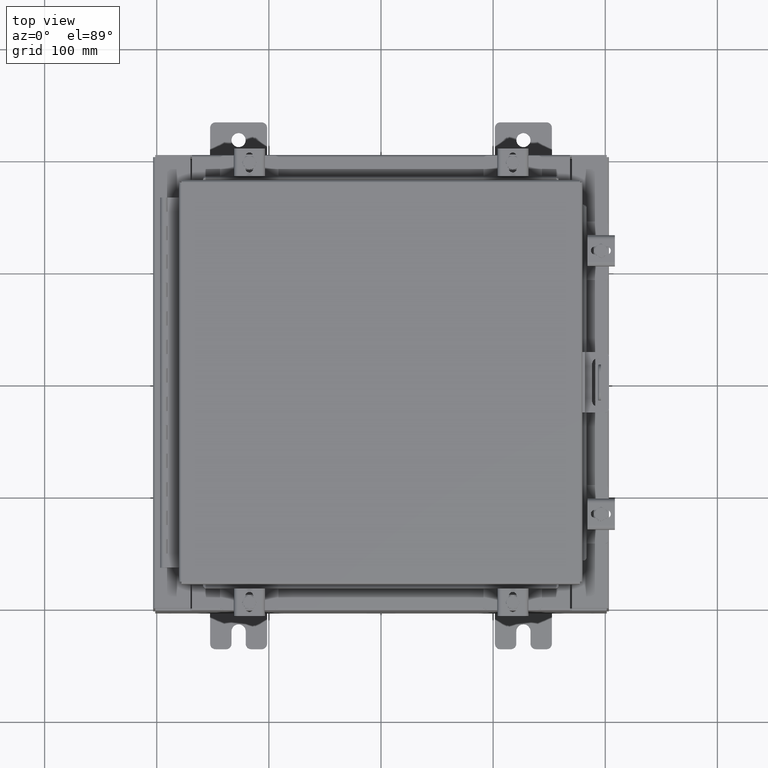
[diagram: clean part render]
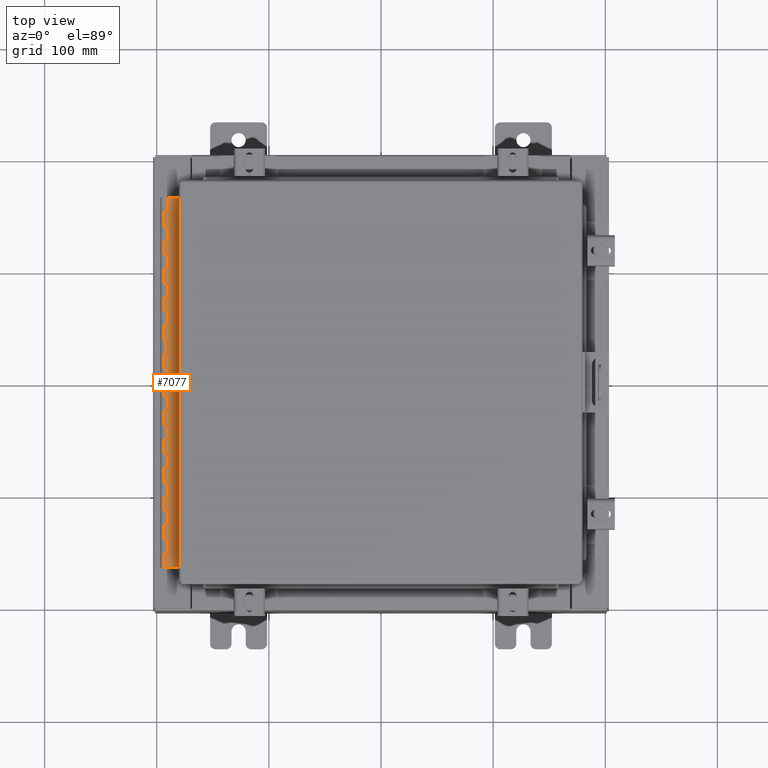
[diagram: same view with one face highlighted and labeled with its STEP entity id]
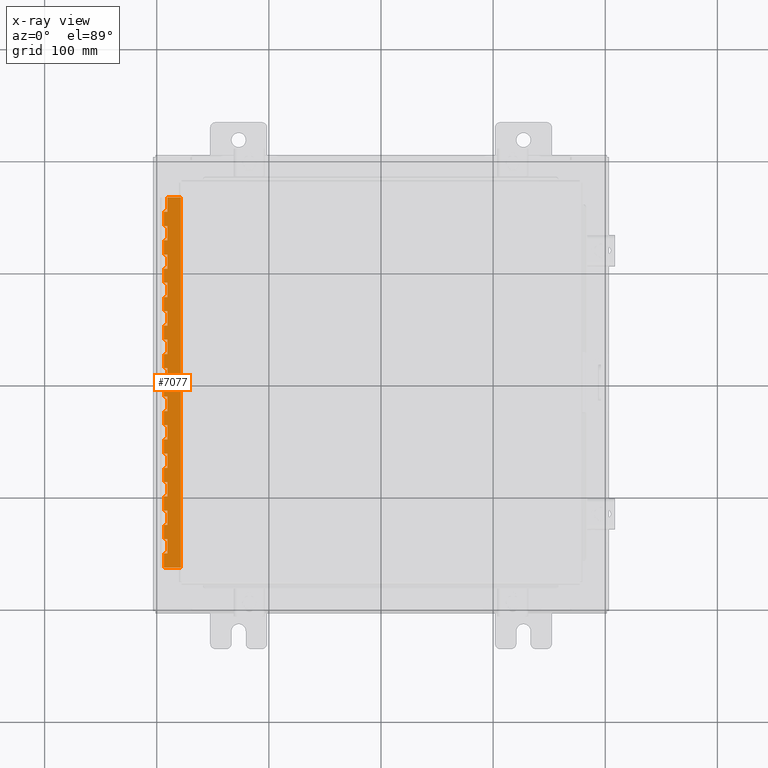
[diagram: x-ray of the same camera — body ghosted, the highlighted face saturated]
A machine part, top view. The second image highlights one B-rep face of the part: STEP entity #7077.
The next image is the same camera in x-ray: the body ghosted, the highlighted face saturated — about 0% of this face is hidden behind the body in this view.
In plain terms, the highlighted planar face has unit normal (-0, -0, 1).
Its self-contained STEP definition (entity closure, byte-faithful):
#88 = EDGE_CURVE ( 'NONE', #881, #17939, #12358, .T. ) ;
#188 = CARTESIAN_POINT ( 'NONE',  ( -0.6869999999999982800, 0.5504999999999997700, -9.500000000000000000 ) ) ;
#280 = DIRECTION ( 'NONE',  ( 0.0000000000000000000, -0.0000000000000000000, -1.000000000000000000 ) ) ;
#363 = CARTESIAN_POINT ( 'NONE',  ( -0.6869999999999982800, 0.5504999999999997700, -10.50000000000000000 ) ) ;
#408 = DIRECTION ( 'NONE',  ( -3.389037039080723100E-015, -1.000000000000000000, 0.0000000000000000000 ) ) ;
#529 = ORIENTED_EDGE ( 'NONE', *, *, #11319, .F. ) ;
#543 = CARTESIAN_POINT ( 'NONE',  ( -0.6869999999999982800, 0.5504999999999997700, -10.00000000000000000 ) ) ;
#582 = CARTESIAN_POINT ( 'NONE',  ( -0.6869999999999982800, 0.5504999999999997700, -1.499999999999999800 ) ) ;
#587 = VECTOR ( 'NONE', #22249, 39.37007874015748100 ) ;
#595 = DIRECTION ( 'NONE',  ( -3.389037039080723100E-015, -1.000000000000000000, 0.0000000000000000000 ) ) ;
#621 = CARTESIAN_POINT ( 'NONE',  ( -0.6869999999999978300, 0.6754999999999996600, -13.00000000000000000 ) ) ;
#644 = VECTOR ( 'NONE', #22413, 39.37007874015748100 ) ;
#703 = DIRECTION ( 'NONE',  ( 3.389037039080723100E-015, 1.000000000000000000, -0.0000000000000000000 ) ) ;
#782 = DIRECTION ( 'NONE',  ( 3.389037039080723100E-015, 1.000000000000000000, -0.0000000000000000000 ) ) ;
#851 = VECTOR ( 'NONE', #14543, 39.37007874015748100 ) ;
#871 = ORIENTED_EDGE ( 'NONE', *, *, #14761, .F. ) ;
#881 = VERTEX_POINT ( 'NONE', #17941 ) ;
#899 = CARTESIAN_POINT ( 'NONE',  ( -0.6869999999999973900, 0.8004999999999995500, -11.00000000000000000 ) ) ;
#1014 = DIRECTION ( 'NONE',  ( 0.0000000000000000000, 0.0000000000000000000, 1.000000000000000000 ) ) ;
#1139 = LINE ( 'NONE', #24567, #17152 ) ;
#1156 = LINE ( 'NONE', #20278, #21276 ) ;
#1172 = ORIENTED_EDGE ( 'NONE', *, *, #7482, .F. ) ;
#1234 = DIRECTION ( 'NONE',  ( 0.0000000000000000000, 0.0000000000000000000, 1.000000000000000000 ) ) ;
#1236 = LINE ( 'NONE', #20122, #587 ) ;
#1375 = ORIENTED_EDGE ( 'NONE', *, *, #6062, .F. ) ;
#1393 = VECTOR ( 'NONE', #6144, 39.37007874015748100 ) ;
#1422 = ORIENTED_EDGE ( 'NONE', *, *, #15826, .F. ) ;
#1586 = VERTEX_POINT ( 'NONE', #12558 ) ;
#1605 = VERTEX_POINT ( 'NONE', #22999 ) ;
#1673 = VECTOR ( 'NONE', #24564, 39.37007874015748100 ) ;
#1792 = DIRECTION ( 'NONE',  ( 3.389037039080723100E-015, 1.000000000000000000, -0.0000000000000000000 ) ) ;
#1833 = VERTEX_POINT ( 'NONE', #11587 ) ;
#1913 = EDGE_CURVE ( 'NONE', #23314, #25727, #15689, .T. ) ;
#1928 = CARTESIAN_POINT ( 'NONE',  ( -0.6869999999999982800, 0.5504999999999997700, -3.500000000000000000 ) ) ;
#1977 = VERTEX_POINT ( 'NONE', #9130 ) ;
#2052 = CARTESIAN_POINT ( 'NONE',  ( -0.6869999999999978300, 0.6754999999999996600, -7.000000000000000000 ) ) ;
#2056 = EDGE_CURVE ( 'NONE', #7059, #4881, #7890, .T. ) ;
#2092 = VERTEX_POINT ( 'NONE', #17105 ) ;
#2268 = CARTESIAN_POINT ( 'NONE',  ( -0.6869999999999978300, 0.6754999999999996600, -13.00000000000000000 ) ) ;
#2328 = EDGE_CURVE ( 'NONE', #20065, #12952, #11635, .T. ) ;
#2338 = CARTESIAN_POINT ( 'NONE',  ( -0.6869999999999978300, 0.6754999999999996600, -1.000000000000000000 ) ) ;
#2440 = CARTESIAN_POINT ( 'NONE',  ( -0.6869999999999973900, 0.8004999999999995500, -0.5000000000000000000 ) ) ;
#2458 = VECTOR ( 'NONE', #12018, 39.37007874015748100 ) ;
#2530 = VECTOR ( 'NONE', #21783, 39.37007874015748100 ) ;
#2575 = EDGE_CURVE ( 'NONE', #1977, #13095, #1236, .T. ) ;
#2689 = VERTEX_POINT ( 'NONE', #7006 ) ;
#2694 = CARTESIAN_POINT ( 'NONE',  ( -0.6869999999999973900, 0.8004999999999995500, -8.500000000000000000 ) ) ;
#2762 = EDGE_CURVE ( 'NONE', #1977, #7880, #18842, .T. ) ;
#2811 = ORIENTED_EDGE ( 'NONE', *, *, #2056, .T. ) ;
#2878 = DIRECTION ( 'NONE',  ( 0.0000000000000000000, -0.0000000000000000000, -1.000000000000000000 ) ) ;
#2887 = CARTESIAN_POINT ( 'NONE',  ( -0.6869999999999982800, 0.5504999999999997700, -1.000000000000000000 ) ) ;
#2892 = VECTOR ( 'NONE', #1792, 39.37007874015748100 ) ;
#2979 = VECTOR ( 'NONE', #1014, 39.37007874015748100 ) ;
#2998 = LINE ( 'NONE', #8619, #21855 ) ;
#3104 = LINE ( 'NONE', #2440, #14404 ) ;
#3108 = EDGE_CURVE ( 'NONE', #24055, #22988, #16592, .T. ) ;
#3314 = ORIENTED_EDGE ( 'NONE', *, *, #9897, .T. ) ;
#3369 = EDGE_CURVE ( 'NONE', #24427, #20065, #12844, .T. ) ;
#3432 = VECTOR ( 'NONE', #11794, 39.37007874015748100 ) ;
#3519 = EDGE_CURVE ( 'NONE', #16982, #24278, #8448, .T. ) ;
#3567 = CARTESIAN_POINT ( 'NONE',  ( -0.6869999999999978300, 0.6754999999999996600, -12.49999999999999800 ) ) ;
#3654 = LINE ( 'NONE', #14156, #24445 ) ;
#3666 = CARTESIAN_POINT ( 'NONE',  ( -0.6869999999999982800, 0.5504999999999997700, -6.499999999999999100 ) ) ;
#3667 = CARTESIAN_POINT ( 'NONE',  ( -0.6870000000000022800, -0.6245000000000003900, 0.0000000000000000000 ) ) ;
#3681 = VECTOR ( 'NONE', #4147, 39.37007874015748100 ) ;
#3728 = CARTESIAN_POINT ( 'NONE',  ( -0.6869999999999978300, 0.6754999999999996600, -9.000000000000000000 ) ) ;
#3764 = DIRECTION ( 'NONE',  ( 3.369016658928398200E-015, 1.000000000000000000, 0.0000000000000000000 ) ) ;
#3770 = LINE ( 'NONE', #9864, #9156 ) ;
#3793 = EDGE_CURVE ( 'NONE', #4752, #9660, #16883, .T. ) ;
#3812 = CARTESIAN_POINT ( 'NONE',  ( -0.6869999999999973900, 0.8004999999999995500, -5.000000000000000000 ) ) ;
#3888 = EDGE_CURVE ( 'NONE', #7059, #1586, #20341, .T. ) ;
#3935 = CARTESIAN_POINT ( 'NONE',  ( -0.6869999999999982800, 0.5504999999999997700, -7.499999999999999100 ) ) ;
#4034 = CARTESIAN_POINT ( 'NONE',  ( -0.6869999999999978300, 0.6754999999999996600, -11.00000000000000000 ) ) ;
#4092 = CARTESIAN_POINT ( 'NONE',  ( -0.6869999999999998300, 0.07549999999999991400, 0.0000000000000000000 ) ) ;
#4101 = LINE ( 'NONE', #18812, #8215 ) ;
#4102 = LINE ( 'NONE', #5393, #19524 ) ;
#4147 = DIRECTION ( 'NONE',  ( -3.389037039080723100E-015, -1.000000000000000000, 0.0000000000000000000 ) ) ;
#4200 = EDGE_CURVE ( 'NONE', #1605, #4940, #8088, .T. ) ;
#4364 = DIRECTION ( 'NONE',  ( 3.389037039080723100E-015, 1.000000000000000000, -0.0000000000000000000 ) ) ;
#4406 = EDGE_CURVE ( 'NONE', #16698, #16938, #3654, .T. ) ;
#4456 = DIRECTION ( 'NONE',  ( -3.389037039080723100E-015, -1.000000000000000000, 0.0000000000000000000 ) ) ;
#4457 = VERTEX_POINT ( 'NONE', #17417 ) ;
#4489 = DIRECTION ( 'NONE',  ( 0.0000000000000000000, 0.0000000000000000000, 1.000000000000000000 ) ) ;
#4543 = CARTESIAN_POINT ( 'NONE',  ( -0.6869999999999982800, 0.5504999999999997700, -7.499999999999999100 ) ) ;
#4717 = CARTESIAN_POINT ( 'NONE',  ( -0.6869999999999973900, 0.8004999999999995500, -10.00000000000000000 ) ) ;
#4752 = VERTEX_POINT ( 'NONE', #14574 ) ;
#4818 = DIRECTION ( 'NONE',  ( -3.389037039080723100E-015, -1.000000000000000000, 0.0000000000000000000 ) ) ;
#4881 = VERTEX_POINT ( 'NONE', #25718 ) ;
#4940 = VERTEX_POINT ( 'NONE', #4034 ) ;
#4961 = AXIS2_PLACEMENT_3D ( 'NONE', #13155, #17176, #5167 ) ;
#5018 = CARTESIAN_POINT ( 'NONE',  ( -0.6869999999999982800, 0.5504999999999997700, -8.000000000000000000 ) ) ;
#5022 = ORIENTED_EDGE ( 'NONE', *, *, #17094, .F. ) ;
#5045 = CARTESIAN_POINT ( 'NONE',  ( -0.6869999999999978300, 0.6754999999999996600, -5.000000000000000000 ) ) ;
#5059 = ORIENTED_EDGE ( 'NONE', *, *, #3369, .F. ) ;
#5077 = EDGE_CURVE ( 'NONE', #25938, #13760, #12158, .T. ) ;
#5108 = VECTOR ( 'NONE', #280, 39.37007874015748100 ) ;
#5129 = VECTOR ( 'NONE', #14119, 39.37007874015748100 ) ;
#5167 = DIRECTION ( 'NONE',  ( 3.369016658928398200E-015, 1.000000000000000000, 0.0000000000000000000 ) ) ;
#5168 = ORIENTED_EDGE ( 'NONE', *, *, #7374, .F. ) ;
#5189 = EDGE_CURVE ( 'NONE', #24427, #8180, #25719, .T. ) ;
#5225 = VERTEX_POINT ( 'NONE', #13686 ) ;
#5393 = CARTESIAN_POINT ( 'NONE',  ( -0.6870000000000022800, -0.6245000000000003900, -13.00000000000000000 ) ) ;
#5399 = CARTESIAN_POINT ( 'NONE',  ( -0.6869999999999982800, 0.5504999999999997700, -6.499999999999999100 ) ) ;
#5405 = ORIENTED_EDGE ( 'NONE', *, *, #11881, .F. ) ;
#5572 = EDGE_CURVE ( 'NONE', #14646, #16938, #22852, .T. ) ;
#5772 = LINE ( 'NONE', #10670, #7066 ) ;
#5859 = LINE ( 'NONE', #20550, #21254 ) ;
#5883 = DIRECTION ( 'NONE',  ( 0.0000000000000000000, -0.0000000000000000000, -1.000000000000000000 ) ) ;
#5961 = VERTEX_POINT ( 'NONE', #5018 ) ;
#6062 = EDGE_CURVE ( 'NONE', #25938, #24232, #22825, .T. ) ;
#6136 = ORIENTED_EDGE ( 'NONE', *, *, #25453, .F. ) ;
#6135 = VECTOR ( 'NONE', #8825, 39.37007874015748100 ) ;
#6144 = DIRECTION ( 'NONE',  ( 3.389037039080723100E-015, 1.000000000000000000, -0.0000000000000000000 ) ) ;
#6186 = CARTESIAN_POINT ( 'NONE',  ( -0.6869999999999978300, 0.6754999999999996600, -13.00000000000000000 ) ) ;
#6225 = EDGE_CURVE ( 'NONE', #24546, #19864, #24390, .T. ) ;
#6246 = LINE ( 'NONE', #9199, #16248 ) ;
#6288 = VECTOR ( 'NONE', #24203, 39.37007874015748100 ) ;
#6347 = VECTOR ( 'NONE', #20216, 39.37007874015748100 ) ;
#6354 = CARTESIAN_POINT ( 'NONE',  ( -0.6869999999999973900, 0.8004999999999995500, -11.99999999999999800 ) ) ;
#6414 = VERTEX_POINT ( 'NONE', #9903 ) ;
#6482 = CARTESIAN_POINT ( 'NONE',  ( -0.6869999999999982800, 0.5504999999999997700, -12.49999999999999800 ) ) ;
#6602 = DIRECTION ( 'NONE',  ( -3.389037039080723100E-015, -1.000000000000000000, 0.0000000000000000000 ) ) ;
#6659 = CARTESIAN_POINT ( 'NONE',  ( -0.6869999999999973900, 0.8004999999999995500, -6.499999999999999100 ) ) ;
#6773 = LINE ( 'NONE', #12209, #1393 ) ;
#6789 = CARTESIAN_POINT ( 'NONE',  ( -0.6869999999999973900, 0.8004999999999995500, -1.499999999999999800 ) ) ;
#6796 = CARTESIAN_POINT ( 'NONE',  ( -0.6869999999999973900, 0.8004999999999995500, -2.999999999999999600 ) ) ;
#6854 = CARTESIAN_POINT ( 'NONE',  ( -0.6869999999999978300, 0.6754999999999996600, -10.00000000000000000 ) ) ;
#6912 = VERTEX_POINT ( 'NONE', #24810 ) ;
#6982 = CARTESIAN_POINT ( 'NONE',  ( -0.6869999999999973900, 0.8004999999999995500, -2.500000000000000000 ) ) ;
#7006 = CARTESIAN_POINT ( 'NONE',  ( -0.6869999999999978300, 0.6754999999999996600, -4.500000000000000000 ) ) ;
#7059 = VERTEX_POINT ( 'NONE', #13065 ) ;
#7066 = VECTOR ( 'NONE', #595, 39.37007874015748100 ) ;
#7077 = ADVANCED_FACE ( 'NONE', ( #11447 ), #23211, .T. ) ;
#7171 = EDGE_CURVE ( 'NONE', #24278, #11607, #10835, .T. ) ;
#7248 = VECTOR ( 'NONE', #5883, 39.37007874015748100 ) ;
#7374 = EDGE_CURVE ( 'NONE', #5961, #4881, #23686, .T. ) ;
#7416 = DIRECTION ( 'NONE',  ( 3.369016658928398200E-015, 1.000000000000000000, 0.0000000000000000000 ) ) ;
#7421 = LINE ( 'NONE', #4543, #12112 ) ;
#7427 = DIRECTION ( 'NONE',  ( 0.0000000000000000000, -0.0000000000000000000, -1.000000000000000000 ) ) ;
#7443 = VECTOR ( 'NONE', #4364, 39.37007874015748100 ) ;
#7447 = ORIENTED_EDGE ( 'NONE', *, *, #2328, .F. ) ;
#7470 = VECTOR ( 'NONE', #20738, 39.37007874015748100 ) ;
#7482 = EDGE_CURVE ( 'NONE', #9660, #21303, #21130, .T. ) ;
#7501 = VERTEX_POINT ( 'NONE', #22456 ) ;
#7556 = ORIENTED_EDGE ( 'NONE', *, *, #4406, .T. ) ;
#7642 = VECTOR ( 'NONE', #16003, 39.37007874015748100 ) ;
#7677 = ORIENTED_EDGE ( 'NONE', *, *, #7171, .F. ) ;
#7772 = ORIENTED_EDGE ( 'NONE', *, *, #24058, .F. ) ;
#7781 = CARTESIAN_POINT ( 'NONE',  ( -0.6869999999999978300, 0.6754999999999996600, -6.499999999999999100 ) ) ;
#7823 = EDGE_CURVE ( 'NONE', #21484, #8180, #13550, .T. ) ;
#7840 = VERTEX_POINT ( 'NONE', #3728 ) ;
#7880 = VERTEX_POINT ( 'NONE', #2052 ) ;
#7890 = LINE ( 'NONE', #8067, #2530 ) ;
#7941 = EDGE_CURVE ( 'NONE', #23314, #7501, #17007, .T. ) ;
#8067 = CARTESIAN_POINT ( 'NONE',  ( -0.6869999999999978300, 0.6754999999999996600, -13.00000000000000000 ) ) ;
#8088 = LINE ( 'NONE', #25999, #23520 ) ;
#8105 = ORIENTED_EDGE ( 'NONE', *, *, #9067, .F. ) ;
#8180 = VERTEX_POINT ( 'NONE', #5045 ) ;
#8215 = VECTOR ( 'NONE', #20816, 39.37007874015748100 ) ;
#8271 = EDGE_CURVE ( 'NONE', #14400, #14557, #4102, .T. ) ;
#8367 = ORIENTED_EDGE ( 'NONE', *, *, #88, .F. ) ;
#8413 = ORIENTED_EDGE ( 'NONE', *, *, #11802, .T. ) ;
#8448 = LINE ( 'NONE', #1928, #2458 ) ;
#8619 = CARTESIAN_POINT ( 'NONE',  ( -0.6869999999999973900, 0.8004999999999995500, -3.500000000000000000 ) ) ;
#8698 = LINE ( 'NONE', #2268, #18721 ) ;
#8754 = VERTEX_POINT ( 'NONE', #20914 ) ;
#8815 = DIRECTION ( 'NONE',  ( 0.0000000000000000000, -0.0000000000000000000, -1.000000000000000000 ) ) ;
#8825 = DIRECTION ( 'NONE',  ( -3.389037039080723100E-015, -1.000000000000000000, 0.0000000000000000000 ) ) ;
#8873 = EDGE_CURVE ( 'NONE', #881, #4457, #12896, .T. ) ;
#8989 = LINE ( 'NONE', #11073, #2979 ) ;
#9027 = EDGE_CURVE ( 'NONE', #1586, #1833, #20424, .T. ) ;
#9067 = EDGE_CURVE ( 'NONE', #22876, #7880, #3770, .T. ) ;
#9088 = ORIENTED_EDGE ( 'NONE', *, *, #3519, .F. ) ;
#9130 = CARTESIAN_POINT ( 'NONE',  ( -0.6869999999999978300, 0.6754999999999996600, -7.499999999999999100 ) ) ;
#9146 = EDGE_CURVE ( 'NONE', #17939, #6414, #23294, .T. ) ;
#9156 = VECTOR ( 'NONE', #21865, 39.37007874015748100 ) ;
#9199 = CARTESIAN_POINT ( 'NONE',  ( -0.6869999999999978300, 0.6754999999999996600, -13.00000000000000000 ) ) ;
#9337 = EDGE_CURVE ( 'NONE', #2689, #2092, #24864, .T. ) ;
#9351 = CARTESIAN_POINT ( 'NONE',  ( -0.6869999999999998300, 0.07549999999999991400, -13.00000000000000000 ) ) ;
#9358 = ORIENTED_EDGE ( 'NONE', *, *, #17834, .F. ) ;
#9455 = ORIENTED_EDGE ( 'NONE', *, *, #17300, .F. ) ;
#9660 = VERTEX_POINT ( 'NONE', #17693 ) ;
#9864 = CARTESIAN_POINT ( 'NONE',  ( -0.6869999999999973900, 0.8004999999999995500, -7.000000000000000000 ) ) ;
#9897 = EDGE_CURVE ( 'NONE', #4752, #7840, #6246, .T. ) ;
#9903 = CARTESIAN_POINT ( 'NONE',  ( -0.6869999999999982800, 0.5504999999999997700, -2.999999999999999600 ) ) ;
#10157 = DIRECTION ( 'NONE',  ( 0.0000000000000000000, 0.0000000000000000000, 1.000000000000000000 ) ) ;
#10406 = VECTOR ( 'NONE', #25987, 39.37007874015748100 ) ;
#10451 = CARTESIAN_POINT ( 'NONE',  ( -0.6869999999999973900, 0.8004999999999995500, -1.000000000000000000 ) ) ;
#10472 = VERTEX_POINT ( 'NONE', #25430 ) ;
#10648 = DIRECTION ( 'NONE',  ( -3.389037039080723100E-015, -1.000000000000000000, 0.0000000000000000000 ) ) ;
#10661 = ORIENTED_EDGE ( 'NONE', *, *, #11212, .F. ) ;
#10670 = CARTESIAN_POINT ( 'NONE',  ( -0.6869999999999973900, 0.8004999999999995500, -12.49999999999999800 ) ) ;
#10776 = CARTESIAN_POINT ( 'NONE',  ( -0.6869999999999973900, 0.8004999999999995500, -9.000000000000000000 ) ) ;
#10805 = VECTOR ( 'NONE', #8815, 39.37007874015748100 ) ;
#10835 = LINE ( 'NONE', #13401, #14862 ) ;
#10917 = ORIENTED_EDGE ( 'NONE', *, *, #24274, .F. ) ;
#10937 = CARTESIAN_POINT ( 'NONE',  ( -0.6869999999999982800, 0.5504999999999997700, -5.500000000000000000 ) ) ;
#10981 = VECTOR ( 'NONE', #4818, 39.37007874015748100 ) ;
#11073 = CARTESIAN_POINT ( 'NONE',  ( -0.6869999999999978300, 0.6754999999999996600, -13.00000000000000000 ) ) ;
#11190 = ORIENTED_EDGE ( 'NONE', *, *, #9146, .F. ) ;
#11195 = DIRECTION ( 'NONE',  ( 0.0000000000000000000, 0.0000000000000000000, 1.000000000000000000 ) ) ;
#11204 = EDGE_CURVE ( 'NONE', #1605, #13599, #1139, .T. ) ;
#11212 = EDGE_CURVE ( 'NONE', #14400, #14646, #5859, .T. ) ;
#11319 = EDGE_CURVE ( 'NONE', #6414, #6912, #24762, .T. ) ;
#11447 = FACE_OUTER_BOUND ( 'NONE', #11850, .T. ) ;
#11587 = CARTESIAN_POINT ( 'NONE',  ( -0.6869999999999982800, 0.5504999999999997700, -9.000000000000000000 ) ) ;
#11607 = VERTEX_POINT ( 'NONE', #13672 ) ;
#11635 = LINE ( 'NONE', #21983, #6288 ) ;
#11728 = ORIENTED_EDGE ( 'NONE', *, *, #6225, .T. ) ;
#11794 = DIRECTION ( 'NONE',  ( 0.0000000000000000000, 0.0000000000000000000, 1.000000000000000000 ) ) ;
#11802 = EDGE_CURVE ( 'NONE', #2689, #11607, #8698, .T. ) ;
#11850 = EDGE_LOOP ( 'NONE', ( #10661, #17806, #5022, #9358, #11728, #13632, #6136, #19711, #25348, #9455, #10917, #19260, #13389, #15428, #1172, #19786, #3314, #21885, #17817, #14312, #2811, #5168, #5405, #12438, #19309, #8105, #22360, #24522, #14757, #25675, #7447, #5059, #15851, #19769, #7772, #17267, #8413, #7677, #9088, #13224, #18042, #529, #11190, #8367, #14430, #1422, #15941, #1375, #11971, #24774, #13433, #871, #7556, #23756 ) ) ;
#11881 = EDGE_CURVE ( 'NONE', #13095, #5961, #7421, .T. ) ;
#11971 = ORIENTED_EDGE ( 'NONE', *, *, #5077, .T. ) ;
#11988 = LINE ( 'NONE', #13511, #16686 ) ;
#11989 = EDGE_CURVE ( 'NONE', #24232, #8754, #20261, .T. ) ;
#12018 = DIRECTION ( 'NONE',  ( 0.0000000000000000000, -0.0000000000000000000, -1.000000000000000000 ) ) ;
#12037 = EDGE_CURVE ( 'NONE', #10472, #6912, #8989, .T. ) ;
#12112 = VECTOR ( 'NONE', #20616, 39.37007874015748100 ) ;
#12158 = LINE ( 'NONE', #22810, #7470 ) ;
#12209 = CARTESIAN_POINT ( 'NONE',  ( -0.6869999999999973900, 0.8004999999999995500, -6.000000000000000900 ) ) ;
#12334 = CARTESIAN_POINT ( 'NONE',  ( -0.6869999999999982800, 0.5504999999999997700, -12.49999999999999800 ) ) ;
#12358 = LINE ( 'NONE', #6982, #1673 ) ;
#12438 = ORIENTED_EDGE ( 'NONE', *, *, #2575, .F. ) ;
#12558 = CARTESIAN_POINT ( 'NONE',  ( -0.6869999999999982800, 0.5504999999999997700, -8.500000000000000000 ) ) ;
#12645 = VECTOR ( 'NONE', #18671, 39.37007874015748100 ) ;
#12844 = LINE ( 'NONE', #14631, #10981 ) ;
#12896 = LINE ( 'NONE', #21347, #18238 ) ;
#12952 = VERTEX_POINT ( 'NONE', #13517 ) ;
#12995 = CARTESIAN_POINT ( 'NONE',  ( -0.6869999999999982800, 0.5504999999999997700, -2.500000000000000000 ) ) ;
#13065 = CARTESIAN_POINT ( 'NONE',  ( -0.6869999999999978300, 0.6754999999999996600, -8.500000000000000000 ) ) ;
#13095 = VERTEX_POINT ( 'NONE', #3935 ) ;
#13155 = CARTESIAN_POINT ( 'NONE',  ( -0.6870000000000022800, -0.6245000000000003900, -13.00000000000000000 ) ) ;
#13176 = EDGE_CURVE ( 'NONE', #12952, #7501, #6773, .T. ) ;
#13224 = ORIENTED_EDGE ( 'NONE', *, *, #22392, .F. ) ;
#13389 = ORIENTED_EDGE ( 'NONE', *, *, #17454, .T. ) ;
#13401 = CARTESIAN_POINT ( 'NONE',  ( -0.6869999999999973900, 0.8004999999999995500, -4.000000000000000000 ) ) ;
#13433 = ORIENTED_EDGE ( 'NONE', *, *, #20238, .F. ) ;
#13511 = CARTESIAN_POINT ( 'NONE',  ( -0.6869999999999982800, 0.5504999999999997700, -0.5000000000000000000 ) ) ;
#13517 = CARTESIAN_POINT ( 'NONE',  ( -0.6869999999999982800, 0.5504999999999997700, -6.000000000000000900 ) ) ;
#13550 = LINE ( 'NONE', #3812, #2892 ) ;
#13599 = VERTEX_POINT ( 'NONE', #17435 ) ;
#13632 = ORIENTED_EDGE ( 'NONE', *, *, #19537, .F. ) ;
#13672 = CARTESIAN_POINT ( 'NONE',  ( -0.6869999999999978300, 0.6754999999999996600, -4.000000000000000000 ) ) ;
#13678 = CARTESIAN_POINT ( 'NONE',  ( -0.6869999999999982800, 0.5504999999999997700, -8.500000000000000000 ) ) ;
#13686 = CARTESIAN_POINT ( 'NONE',  ( -0.6869999999999982800, 0.5504999999999997700, -11.99999999999999800 ) ) ;
#13760 = VERTEX_POINT ( 'NONE', #2338 ) ;
#13800 = CARTESIAN_POINT ( 'NONE',  ( -0.6869999999999978300, 0.6754999999999996600, -13.00000000000000000 ) ) ;
#13882 = LINE ( 'NONE', #4717, #12645 ) ;
#13900 = CARTESIAN_POINT ( 'NONE',  ( -0.6869999999999978300, 0.6754999999999996600, 0.0000000000000000000 ) ) ;
#13934 = VERTEX_POINT ( 'NONE', #25311 ) ;
#13947 = VECTOR ( 'NONE', #7427, 39.37007874015748100 ) ;
#14001 = CARTESIAN_POINT ( 'NONE',  ( -0.6869999999999973900, 0.8004999999999995500, -8.000000000000000000 ) ) ;
#14119 = DIRECTION ( 'NONE',  ( 0.0000000000000000000, -0.0000000000000000000, -1.000000000000000000 ) ) ;
#14156 = CARTESIAN_POINT ( 'NONE',  ( -0.6869999999999978300, 0.6754999999999996600, -13.00000000000000000 ) ) ;
#14312 = ORIENTED_EDGE ( 'NONE', *, *, #3888, .F. ) ;
#14400 = VERTEX_POINT ( 'NONE', #9351 ) ;
#14404 = VECTOR ( 'NONE', #4456, 39.37007874015748100 ) ;
#14430 = ORIENTED_EDGE ( 'NONE', *, *, #8873, .T. ) ;
#14436 = VECTOR ( 'NONE', #23837, 39.37007874015748100 ) ;
#14450 = DIRECTION ( 'NONE',  ( 0.0000000000000000000, 0.0000000000000000000, 1.000000000000000000 ) ) ;
#14543 = DIRECTION ( 'NONE',  ( -3.389037039080723100E-015, -1.000000000000000000, 0.0000000000000000000 ) ) ;
#14556 = VECTOR ( 'NONE', #703, 39.37007874015748100 ) ;
#14557 = VERTEX_POINT ( 'NONE', #15837 ) ;
#14574 = CARTESIAN_POINT ( 'NONE',  ( -0.6869999999999978300, 0.6754999999999996600, -9.500000000000000000 ) ) ;
#14631 = CARTESIAN_POINT ( 'NONE',  ( -0.6869999999999973900, 0.8004999999999995500, -5.500000000000000000 ) ) ;
#14646 = VERTEX_POINT ( 'NONE', #4092 ) ;
#14757 = ORIENTED_EDGE ( 'NONE', *, *, #7941, .T. ) ;
#14761 = EDGE_CURVE ( 'NONE', #16698, #17451, #3104, .T. ) ;
#14862 = VECTOR ( 'NONE', #23471, 39.37007874015748100 ) ;
#14912 = VECTOR ( 'NONE', #2878, 39.37007874015748100 ) ;
#15378 = CARTESIAN_POINT ( 'NONE',  ( -0.6869999999999982800, 0.5504999999999997700, -0.5000000000000000000 ) ) ;
#15428 = ORIENTED_EDGE ( 'NONE', *, *, #18984, .F. ) ;
#15689 = LINE ( 'NONE', #6659, #10406 ) ;
#15761 = LINE ( 'NONE', #22133, #5129 ) ;
#15826 = EDGE_CURVE ( 'NONE', #8754, #4457, #1156, .T. ) ;
#15837 = CARTESIAN_POINT ( 'NONE',  ( -0.6869999999999982800, 0.5504999999999997700, -13.00000000000000000 ) ) ;
#15851 = ORIENTED_EDGE ( 'NONE', *, *, #5189, .T. ) ;
#15930 = CARTESIAN_POINT ( 'NONE',  ( -0.6869999999999973900, 0.8004999999999995500, -9.500000000000000000 ) ) ;
#15941 = ORIENTED_EDGE ( 'NONE', *, *, #11989, .F. ) ;
#16003 = DIRECTION ( 'NONE',  ( 3.389037039080723100E-015, 1.000000000000000000, -0.0000000000000000000 ) ) ;
#16091 = CARTESIAN_POINT ( 'NONE',  ( -0.6869999999999982800, 0.5504999999999997700, -7.000000000000000000 ) ) ;
#16143 = VECTOR ( 'NONE', #24407, 39.37007874015748100 ) ;
#16226 = CARTESIAN_POINT ( 'NONE',  ( -0.6869999999999978300, 0.6754999999999996600, -11.99999999999999800 ) ) ;
#16248 = VECTOR ( 'NONE', #11195, 39.37007874015748100 ) ;
#16451 = VECTOR ( 'NONE', #18996, 39.37007874015748100 ) ;
#16467 = EDGE_CURVE ( 'NONE', #18476, #13760, #24105, .T. ) ;
#16585 = VERTEX_POINT ( 'NONE', #6854 ) ;
#16592 = LINE ( 'NONE', #22073, #21323 ) ;
#16600 = DIRECTION ( 'NONE',  ( 0.0000000000000000000, 0.0000000000000000000, 1.000000000000000000 ) ) ;
#16682 = LINE ( 'NONE', #6354, #644 ) ;
#16686 = VECTOR ( 'NONE', #19587, 39.37007874015748100 ) ;
#16698 = VERTEX_POINT ( 'NONE', #23197 ) ;
#16725 = LINE ( 'NONE', #22688, #10805 ) ;
#16883 = LINE ( 'NONE', #15930, #851 ) ;
#16938 = VERTEX_POINT ( 'NONE', #13900 ) ;
#16982 = VERTEX_POINT ( 'NONE', #22008 ) ;
#17007 = LINE ( 'NONE', #6186, #6347 ) ;
#17094 = EDGE_CURVE ( 'NONE', #25977, #14557, #21526, .T. ) ;
#17095 = LINE ( 'NONE', #899, #16451 ) ;
#17105 = CARTESIAN_POINT ( 'NONE',  ( -0.6869999999999982800, 0.5504999999999997700, -4.500000000000000000 ) ) ;
#17152 = VECTOR ( 'NONE', #408, 39.37007874015748100 ) ;
#17176 = DIRECTION ( 'NONE',  ( 1.000000000000000000, -3.369016658928398200E-015, 0.0000000000000000000 ) ) ;
#17267 = ORIENTED_EDGE ( 'NONE', *, *, #9337, .F. ) ;
#17300 = EDGE_CURVE ( 'NONE', #13934, #4940, #17095, .T. ) ;
#17417 = CARTESIAN_POINT ( 'NONE',  ( -0.6869999999999978300, 0.6754999999999996600, -2.000000000000000000 ) ) ;
#17435 = CARTESIAN_POINT ( 'NONE',  ( -0.6869999999999982800, 0.5504999999999997700, -11.50000000000000000 ) ) ;
#17440 = EDGE_CURVE ( 'NONE', #25727, #22876, #18691, .T. ) ;
#17451 = VERTEX_POINT ( 'NONE', #15378 ) ;
#17454 = EDGE_CURVE ( 'NONE', #24055, #16585, #24701, .T. ) ;
#17693 = CARTESIAN_POINT ( 'NONE',  ( -0.6869999999999982800, 0.5504999999999997700, -9.500000000000000000 ) ) ;
#17806 = ORIENTED_EDGE ( 'NONE', *, *, #8271, .T. ) ;
#17817 = ORIENTED_EDGE ( 'NONE', *, *, #9027, .F. ) ;
#17834 = EDGE_CURVE ( 'NONE', #24546, #25977, #5772, .T. ) ;
#17939 = VERTEX_POINT ( 'NONE', #12995 ) ;
#17941 = CARTESIAN_POINT ( 'NONE',  ( -0.6869999999999978300, 0.6754999999999996600, -2.500000000000000000 ) ) ;
#18042 = ORIENTED_EDGE ( 'NONE', *, *, #12037, .T. ) ;
#18238 = VECTOR ( 'NONE', #1234, 39.37007874015748100 ) ;
#18276 = DIRECTION ( 'NONE',  ( 3.389037039080723100E-015, 1.000000000000000000, -0.0000000000000000000 ) ) ;
#18476 = VERTEX_POINT ( 'NONE', #2887 ) ;
#18671 = DIRECTION ( 'NONE',  ( 3.389037039080723100E-015, 1.000000000000000000, -0.0000000000000000000 ) ) ;
#18691 = LINE ( 'NONE', #5399, #13947 ) ;
#18721 = VECTOR ( 'NONE', #14450, 39.37007874015748100 ) ;
#18812 = CARTESIAN_POINT ( 'NONE',  ( -0.6869999999999982800, 0.5504999999999997700, -11.50000000000000000 ) ) ;
#18842 = LINE ( 'NONE', #13800, #3432 ) ;
#18848 = VECTOR ( 'NONE', #10648, 39.37007874015748100 ) ;
#18984 = EDGE_CURVE ( 'NONE', #21303, #16585, #13882, .T. ) ;
#18996 = DIRECTION ( 'NONE',  ( 3.389037039080723100E-015, 1.000000000000000000, -0.0000000000000000000 ) ) ;
#19183 = CARTESIAN_POINT ( 'NONE',  ( -0.6869999999999982800, 0.5504999999999997700, -5.000000000000000000 ) ) ;
#19184 = DIRECTION ( 'NONE',  ( -3.389037039080723100E-015, -1.000000000000000000, 0.0000000000000000000 ) ) ;
#19260 = ORIENTED_EDGE ( 'NONE', *, *, #3108, .F. ) ;
#19309 = ORIENTED_EDGE ( 'NONE', *, *, #2762, .T. ) ;
#19371 = VECTOR ( 'NONE', #782, 39.37007874015748100 ) ;
#19374 = DIRECTION ( 'NONE',  ( 0.0000000000000000000, 0.0000000000000000000, 1.000000000000000000 ) ) ;
#19524 = VECTOR ( 'NONE', #7416, 39.37007874015748100 ) ;
#19537 = EDGE_CURVE ( 'NONE', #5225, #19864, #16682, .T. ) ;
#19587 = DIRECTION ( 'NONE',  ( 0.0000000000000000000, -0.0000000000000000000, -1.000000000000000000 ) ) ;
#19711 = ORIENTED_EDGE ( 'NONE', *, *, #11204, .F. ) ;
#19769 = ORIENTED_EDGE ( 'NONE', *, *, #7823, .F. ) ;
#19786 = ORIENTED_EDGE ( 'NONE', *, *, #3793, .F. ) ;
#19864 = VERTEX_POINT ( 'NONE', #16226 ) ;
#19915 = LINE ( 'NONE', #10776, #14556 ) ;
#20020 = CARTESIAN_POINT ( 'NONE',  ( -0.6869999999999982800, 0.5504999999999997700, -2.500000000000000000 ) ) ;
#20065 = VERTEX_POINT ( 'NONE', #10937 ) ;
#20122 = CARTESIAN_POINT ( 'NONE',  ( -0.6869999999999973900, 0.8004999999999995500, -7.499999999999999100 ) ) ;
#20216 = DIRECTION ( 'NONE',  ( 0.0000000000000000000, 0.0000000000000000000, 1.000000000000000000 ) ) ;
#20238 = EDGE_CURVE ( 'NONE', #17451, #18476, #11988, .T. ) ;
#20261 = LINE ( 'NONE', #24965, #14912 ) ;
#20278 = CARTESIAN_POINT ( 'NONE',  ( -0.6869999999999973900, 0.8004999999999995500, -2.000000000000000000 ) ) ;
#20341 = LINE ( 'NONE', #2694, #3681 ) ;
#20424 = LINE ( 'NONE', #13678, #14436 ) ;
#20550 = CARTESIAN_POINT ( 'NONE',  ( -0.6869999999999998300, 0.07549999999999991400, -13.00000000000000000 ) ) ;
#20616 = DIRECTION ( 'NONE',  ( 0.0000000000000000000, -0.0000000000000000000, -1.000000000000000000 ) ) ;
#20738 = DIRECTION ( 'NONE',  ( 0.0000000000000000000, 0.0000000000000000000, 1.000000000000000000 ) ) ;
#20811 = CARTESIAN_POINT ( 'NONE',  ( -0.6869999999999982800, 0.5504999999999997700, -4.000000000000000000 ) ) ;
#20816 = DIRECTION ( 'NONE',  ( 0.0000000000000000000, -0.0000000000000000000, -1.000000000000000000 ) ) ;
#20914 = CARTESIAN_POINT ( 'NONE',  ( -0.6869999999999982800, 0.5504999999999997700, -2.000000000000000000 ) ) ;
#21130 = LINE ( 'NONE', #188, #5108 ) ;
#21254 = VECTOR ( 'NONE', #4489, 39.37007874015748100 ) ;
#21276 = VECTOR ( 'NONE', #18276, 39.37007874015748100 ) ;
#21303 = VERTEX_POINT ( 'NONE', #543 ) ;
#21323 = VECTOR ( 'NONE', #19184, 39.37007874015748100 ) ;
#21347 = CARTESIAN_POINT ( 'NONE',  ( -0.6869999999999978300, 0.6754999999999996600, -13.00000000000000000 ) ) ;
#21457 = DIRECTION ( 'NONE',  ( 0.0000000000000000000, 0.0000000000000000000, 1.000000000000000000 ) ) ;
#21484 = VERTEX_POINT ( 'NONE', #19183 ) ;
#21526 = LINE ( 'NONE', #12334, #16143 ) ;
#21783 = DIRECTION ( 'NONE',  ( 0.0000000000000000000, 0.0000000000000000000, 1.000000000000000000 ) ) ;
#21855 = VECTOR ( 'NONE', #6602, 39.37007874015748100 ) ;
#21865 = DIRECTION ( 'NONE',  ( 3.389037039080723100E-015, 1.000000000000000000, -0.0000000000000000000 ) ) ;
#21885 = ORIENTED_EDGE ( 'NONE', *, *, #23618, .F. ) ;
#21983 = CARTESIAN_POINT ( 'NONE',  ( -0.6869999999999982800, 0.5504999999999997700, -5.500000000000000000 ) ) ;
#22008 = CARTESIAN_POINT ( 'NONE',  ( -0.6869999999999982800, 0.5504999999999997700, -3.500000000000000000 ) ) ;
#22073 = CARTESIAN_POINT ( 'NONE',  ( -0.6869999999999973900, 0.8004999999999995500, -10.50000000000000000 ) ) ;
#22133 = CARTESIAN_POINT ( 'NONE',  ( -0.6869999999999982800, 0.5504999999999997700, -4.500000000000000000 ) ) ;
#22196 = VECTOR ( 'NONE', #3764, 39.37007874015748100 ) ;
#22249 = DIRECTION ( 'NONE',  ( -3.389037039080723100E-015, -1.000000000000000000, 0.0000000000000000000 ) ) ;
#22360 = ORIENTED_EDGE ( 'NONE', *, *, #17440, .F. ) ;
#22392 = EDGE_CURVE ( 'NONE', #10472, #16982, #2998, .T. ) ;
#22413 = DIRECTION ( 'NONE',  ( 3.389037039080723100E-015, 1.000000000000000000, -0.0000000000000000000 ) ) ;
#22456 = CARTESIAN_POINT ( 'NONE',  ( -0.6869999999999978300, 0.6754999999999996600, -6.000000000000000900 ) ) ;
#22688 = CARTESIAN_POINT ( 'NONE',  ( -0.6869999999999982800, 0.5504999999999997700, -10.50000000000000000 ) ) ;
#22810 = CARTESIAN_POINT ( 'NONE',  ( -0.6869999999999978300, 0.6754999999999996600, -13.00000000000000000 ) ) ;
#22825 = LINE ( 'NONE', #6789, #6135 ) ;
#22852 = LINE ( 'NONE', #3667, #22196 ) ;
#22876 = VERTEX_POINT ( 'NONE', #16091 ) ;
#22988 = VERTEX_POINT ( 'NONE', #363 ) ;
#22999 = CARTESIAN_POINT ( 'NONE',  ( -0.6869999999999978300, 0.6754999999999996600, -11.50000000000000000 ) ) ;
#23072 = DIRECTION ( 'NONE',  ( 0.0000000000000000000, 0.0000000000000000000, 1.000000000000000000 ) ) ;
#23197 = CARTESIAN_POINT ( 'NONE',  ( -0.6869999999999978300, 0.6754999999999996600, -0.5000000000000000000 ) ) ;
#23211 = PLANE ( 'NONE',  #4961 ) ;
#23294 = LINE ( 'NONE', #20020, #7248 ) ;
#23301 = CARTESIAN_POINT ( 'NONE',  ( -0.6869999999999978300, 0.6754999999999996600, -5.500000000000000000 ) ) ;
#23314 = VERTEX_POINT ( 'NONE', #7781 ) ;
#23436 = VECTOR ( 'NONE', #21457, 39.37007874015748100 ) ;
#23471 = DIRECTION ( 'NONE',  ( 3.389037039080723100E-015, 1.000000000000000000, -0.0000000000000000000 ) ) ;
#23520 = VECTOR ( 'NONE', #10157, 39.37007874015748100 ) ;
#23618 = EDGE_CURVE ( 'NONE', #1833, #7840, #19915, .T. ) ;
#23686 = LINE ( 'NONE', #14001, #7642 ) ;
#23756 = ORIENTED_EDGE ( 'NONE', *, *, #5572, .F. ) ;
#23837 = DIRECTION ( 'NONE',  ( 0.0000000000000000000, -0.0000000000000000000, -1.000000000000000000 ) ) ;
#24055 = VERTEX_POINT ( 'NONE', #26146 ) ;
#24058 = EDGE_CURVE ( 'NONE', #2092, #21484, #15761, .T. ) ;
#24105 = LINE ( 'NONE', #10451, #7443 ) ;
#24203 = DIRECTION ( 'NONE',  ( 0.0000000000000000000, -0.0000000000000000000, -1.000000000000000000 ) ) ;
#24232 = VERTEX_POINT ( 'NONE', #582 ) ;
#24274 = EDGE_CURVE ( 'NONE', #22988, #13934, #16725, .T. ) ;
#24278 = VERTEX_POINT ( 'NONE', #20811 ) ;
#24390 = LINE ( 'NONE', #24822, #25039 ) ;
#24407 = DIRECTION ( 'NONE',  ( 0.0000000000000000000, -0.0000000000000000000, -1.000000000000000000 ) ) ;
#24427 = VERTEX_POINT ( 'NONE', #23301 ) ;
#24445 = VECTOR ( 'NONE', #19374, 39.37007874015748100 ) ;
#24522 = ORIENTED_EDGE ( 'NONE', *, *, #1913, .F. ) ;
#24533 = CARTESIAN_POINT ( 'NONE',  ( -0.6869999999999978300, 0.6754999999999996600, -1.499999999999999800 ) ) ;
#24546 = VERTEX_POINT ( 'NONE', #3567 ) ;
#24564 = DIRECTION ( 'NONE',  ( -3.389037039080723100E-015, -1.000000000000000000, 0.0000000000000000000 ) ) ;
#24567 = CARTESIAN_POINT ( 'NONE',  ( -0.6869999999999973900, 0.8004999999999995500, -11.50000000000000000 ) ) ;
#24701 = LINE ( 'NONE', #25556, #23436 ) ;
#24711 = CARTESIAN_POINT ( 'NONE',  ( -0.6869999999999973900, 0.8004999999999995500, -4.500000000000000000 ) ) ;
#24762 = LINE ( 'NONE', #6796, #19371 ) ;
#24774 = ORIENTED_EDGE ( 'NONE', *, *, #16467, .F. ) ;
#24810 = CARTESIAN_POINT ( 'NONE',  ( -0.6869999999999978300, 0.6754999999999996600, -2.999999999999999600 ) ) ;
#24822 = CARTESIAN_POINT ( 'NONE',  ( -0.6869999999999978300, 0.6754999999999996600, -13.00000000000000000 ) ) ;
#24864 = LINE ( 'NONE', #24711, #18848 ) ;
#24965 = CARTESIAN_POINT ( 'NONE',  ( -0.6869999999999982800, 0.5504999999999997700, -1.499999999999999800 ) ) ;
#25039 = VECTOR ( 'NONE', #23072, 39.37007874015748100 ) ;
#25095 = VECTOR ( 'NONE', #16600, 39.37007874015748100 ) ;
#25311 = CARTESIAN_POINT ( 'NONE',  ( -0.6869999999999982800, 0.5504999999999997700, -11.00000000000000000 ) ) ;
#25348 = ORIENTED_EDGE ( 'NONE', *, *, #4200, .T. ) ;
#25430 = CARTESIAN_POINT ( 'NONE',  ( -0.6869999999999978300, 0.6754999999999996600, -3.500000000000000000 ) ) ;
#25453 = EDGE_CURVE ( 'NONE', #13599, #5225, #4101, .T. ) ;
#25556 = CARTESIAN_POINT ( 'NONE',  ( -0.6869999999999978300, 0.6754999999999996600, -13.00000000000000000 ) ) ;
#25675 = ORIENTED_EDGE ( 'NONE', *, *, #13176, .F. ) ;
#25718 = CARTESIAN_POINT ( 'NONE',  ( -0.6869999999999978300, 0.6754999999999996600, -8.000000000000000000 ) ) ;
#25719 = LINE ( 'NONE', #621, #25095 ) ;
#25727 = VERTEX_POINT ( 'NONE', #3666 ) ;
#25938 = VERTEX_POINT ( 'NONE', #24533 ) ;
#25977 = VERTEX_POINT ( 'NONE', #6482 ) ;
#25987 = DIRECTION ( 'NONE',  ( -3.389037039080723100E-015, -1.000000000000000000, 0.0000000000000000000 ) ) ;
#25999 = CARTESIAN_POINT ( 'NONE',  ( -0.6869999999999978300, 0.6754999999999996600, -13.00000000000000000 ) ) ;
#26146 = CARTESIAN_POINT ( 'NONE',  ( -0.6869999999999978300, 0.6754999999999996600, -10.50000000000000000 ) ) ;